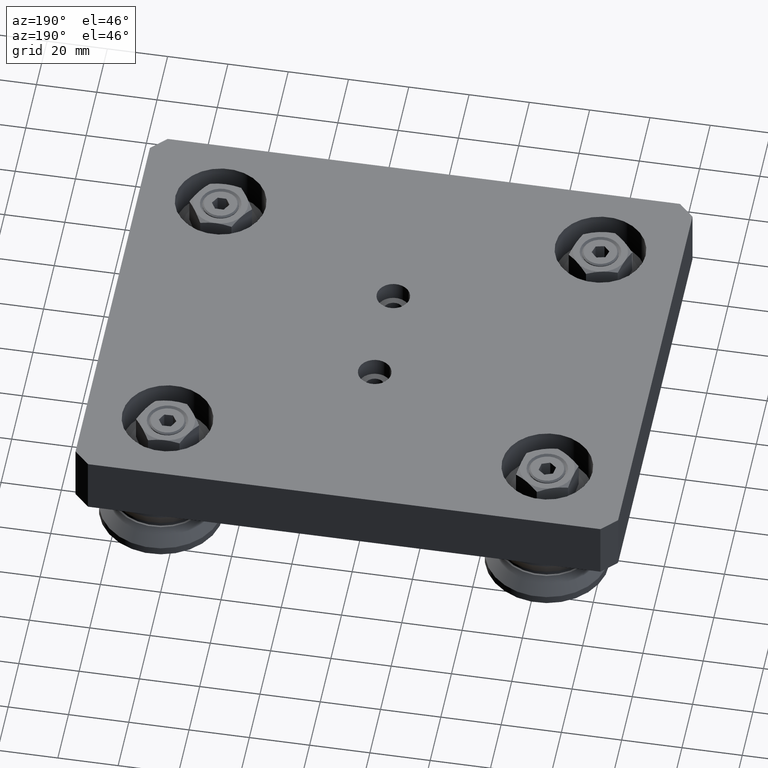
[diagram: clean part render]
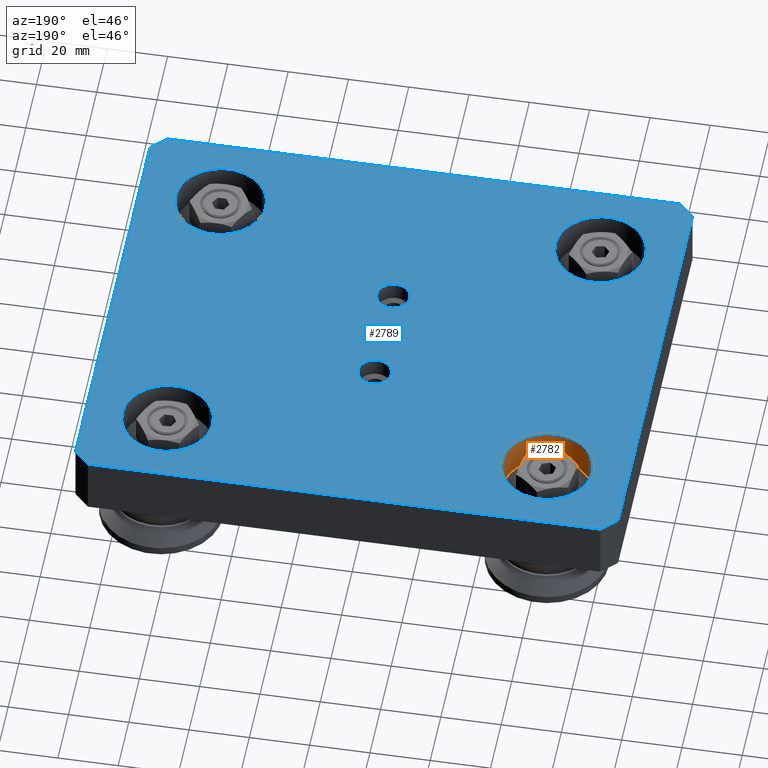
[diagram: same view with the hole feature highlighted: cylindrical wall and planar end face, labeled with their STEP entity ids]
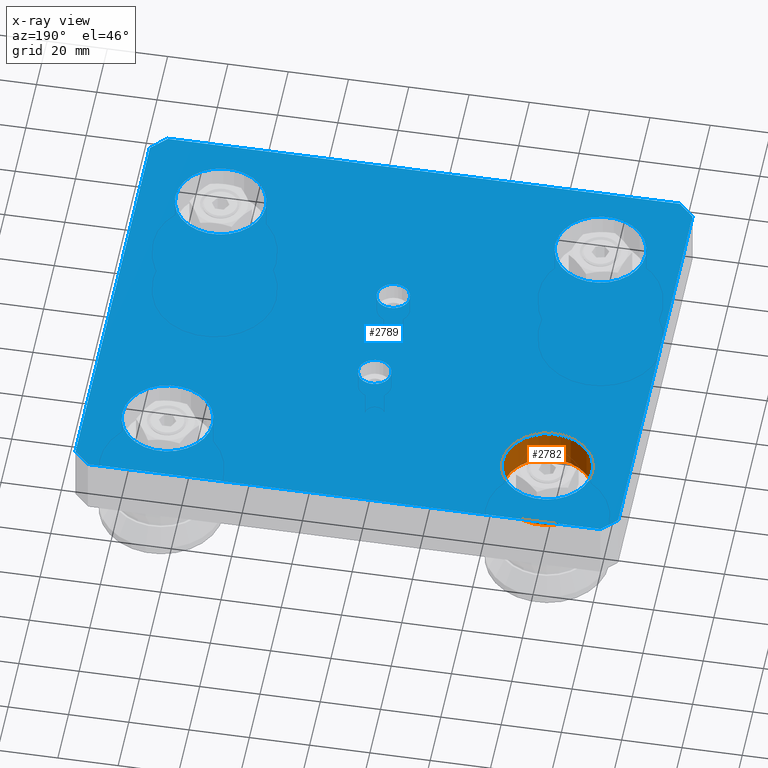
[diagram: x-ray of the same camera — body ghosted, the hole faces saturated]
A machine part, auxiliary view. The highlighted faces form one hole feature of diameter 30 mm: the cylindrical wall (entity #2782, orange) and its adjacent planar end face (entity #2789, blue) — they share a circular edge in the B-rep.
The next image is the same camera in x-ray (body ghosted, the hole faces saturated) — the bore reads through the body.
Wall:
#190=CYLINDRICAL_SURFACE('',#3196,15.);
#289=CIRCLE('',#3194,15.);
#291=CIRCLE('',#3197,15.);
#443=FACE_OUTER_BOUND('',#635,.T.);
#635=EDGE_LOOP('',(#1964,#1965,#1966,#1967));
#855=LINE('',#4552,#1068);
#1068=VECTOR('',#3630,15.);
#1285=VERTEX_POINT('',#4545);
#1287=VERTEX_POINT('',#4550);
#1543=EDGE_CURVE('',#1285,#1285,#289,.T.);
#1545=EDGE_CURVE('',#1287,#1287,#291,.T.);
#1546=EDGE_CURVE('',#1287,#1285,#855,.T.);
#1964=ORIENTED_EDGE('',*,*,#1545,.F.);
#1965=ORIENTED_EDGE('',*,*,#1546,.T.);
#1966=ORIENTED_EDGE('',*,*,#1543,.F.);
#1967=ORIENTED_EDGE('',*,*,#1546,.F.);
#2782=ADVANCED_FACE('',(#443),#190,.F.);
#3194=AXIS2_PLACEMENT_3D('',#4546,#3622,#3623);
#3196=AXIS2_PLACEMENT_3D('',#4549,#3626,#3627);
#3197=AXIS2_PLACEMENT_3D('',#4551,#3628,#3629);
#3622=DIRECTION('center_axis',(0.,0.,1.));
#3623=DIRECTION('ref_axis',(1.,0.,0.));
#3626=DIRECTION('center_axis',(0.,0.,1.));
#3627=DIRECTION('ref_axis',(1.,0.,0.));
#3628=DIRECTION('center_axis',(0.,0.,-1.));
#3629=DIRECTION('ref_axis',(1.,0.,0.));
#3630=DIRECTION('',(0.,0.,-1.));
#4545=CARTESIAN_POINT('',(-78.,50.,8.));
#4546=CARTESIAN_POINT('Origin',(-63.,50.,8.));
#4549=CARTESIAN_POINT('Origin',(-63.,50.,14.));
#4550=CARTESIAN_POINT('',(-78.,50.,20.));
#4551=CARTESIAN_POINT('Origin',(-63.,50.,20.));
#4552=CARTESIAN_POINT('',(-78.,50.,14.));
End face:
#243=FACE_BOUND('',#644,.T.);
#244=FACE_BOUND('',#645,.T.);
#245=FACE_BOUND('',#646,.T.);
#246=FACE_BOUND('',#647,.T.);
#247=FACE_BOUND('',#648,.T.);
#248=FACE_BOUND('',#649,.T.);
#279=CIRCLE('',#3173,5.5);
#282=CIRCLE('',#3179,5.5);
#285=CIRCLE('',#3185,15.);
#288=CIRCLE('',#3191,15.);
#291=CIRCLE('',#3197,15.);
#294=CIRCLE('',#3203,15.);
#450=FACE_OUTER_BOUND('',#643,.T.);
#643=EDGE_LOOP('',(#1990,#1991,#1992,#1993,#1994,#1995,#1996,#1997));
#644=EDGE_LOOP('',(#1998));
#645=EDGE_LOOP('',(#1999));
#646=EDGE_LOOP('',(#2000));
#647=EDGE_LOOP('',(#2001));
#648=EDGE_LOOP('',(#2002));
#649=EDGE_LOOP('',(#2003));
#825=LINE('',#4446,#1038);
#831=LINE('',#4457,#1044);
#838=LINE('',#4485,#1051);
#841=LINE('',#4490,#1054);
#843=LINE('',#4494,#1056);
#845=LINE('',#4498,#1058);
#859=LINE('',#4567,#1072);
#860=LINE('',#4569,#1073);
#1038=VECTOR('',#3518,10.);
#1044=VECTOR('',#3526,10.);
#1051=VECTOR('',#3549,10.);
#1054=VECTOR('',#3554,10.);
#1056=VECTOR('',#3558,10.);
#1058=VECTOR('',#3562,10.);
#1072=VECTOR('',#3650,10.);
#1073=VECTOR('',#3653,10.);
#1251=VERTEX_POINT('',#4444);
#1252=VERTEX_POINT('',#4445);
#1256=VERTEX_POINT('',#4455);
#1268=VERTEX_POINT('',#4483);
#1269=VERTEX_POINT('',#4484);
#1270=VERTEX_POINT('',#4489);
#1271=VERTEX_POINT('',#4493);
#1272=VERTEX_POINT('',#4497);
#1275=VERTEX_POINT('',#4506);
#1278=VERTEX_POINT('',#4517);
#1281=VERTEX_POINT('',#4528);
#1284=VERTEX_POINT('',#4539);
#1287=VERTEX_POINT('',#4550);
#1290=VERTEX_POINT('',#4561);
#1495=EDGE_CURVE('',#1251,#1252,#825,.T.);
#1501=EDGE_CURVE('',#1256,#1251,#831,.T.);
#1514=EDGE_CURVE('',#1268,#1269,#838,.T.);
#1517=EDGE_CURVE('',#1269,#1270,#841,.T.);
#1519=EDGE_CURVE('',#1270,#1271,#843,.T.);
#1521=EDGE_CURVE('',#1272,#1256,#845,.T.);
#1525=EDGE_CURVE('',#1275,#1275,#279,.T.);
#1530=EDGE_CURVE('',#1278,#1278,#282,.T.);
#1535=EDGE_CURVE('',#1281,#1281,#285,.T.);
#1540=EDGE_CURVE('',#1284,#1284,#288,.T.);
#1545=EDGE_CURVE('',#1287,#1287,#291,.T.);
#1550=EDGE_CURVE('',#1290,#1290,#294,.T.);
#1553=EDGE_CURVE('',#1271,#1272,#859,.T.);
#1554=EDGE_CURVE('',#1252,#1268,#860,.T.);
#1990=ORIENTED_EDGE('',*,*,#1495,.F.);
#1991=ORIENTED_EDGE('',*,*,#1501,.F.);
#1992=ORIENTED_EDGE('',*,*,#1521,.F.);
#1993=ORIENTED_EDGE('',*,*,#1553,.F.);
#1994=ORIENTED_EDGE('',*,*,#1519,.F.);
#1995=ORIENTED_EDGE('',*,*,#1517,.F.);
#1996=ORIENTED_EDGE('',*,*,#1514,.F.);
#1997=ORIENTED_EDGE('',*,*,#1554,.F.);
#1998=ORIENTED_EDGE('',*,*,#1525,.T.);
#1999=ORIENTED_EDGE('',*,*,#1530,.T.);
#2000=ORIENTED_EDGE('',*,*,#1535,.T.);
#2001=ORIENTED_EDGE('',*,*,#1540,.T.);
#2002=ORIENTED_EDGE('',*,*,#1545,.T.);
#2003=ORIENTED_EDGE('',*,*,#1550,.T.);
#2677=PLANE('',#3207);
#2789=ADVANCED_FACE('',(#450,#243,#244,#245,#246,#247,#248),#2677,.T.);
#3173=AXIS2_PLACEMENT_3D('',#4507,#3572,#3573);
#3179=AXIS2_PLACEMENT_3D('',#4518,#3586,#3587);
#3185=AXIS2_PLACEMENT_3D('',#4529,#3600,#3601);
#3191=AXIS2_PLACEMENT_3D('',#4540,#3614,#3615);
#3197=AXIS2_PLACEMENT_3D('',#4551,#3628,#3629);
#3203=AXIS2_PLACEMENT_3D('',#4562,#3642,#3643);
#3207=AXIS2_PLACEMENT_3D('',#4570,#3654,#3655);
#3518=DIRECTION('',(0.707106781186548,0.707106781186548,0.));
#3526=DIRECTION('',(0.,1.,0.));
#3549=DIRECTION('',(0.707106781186548,-0.707106781186548,0.));
#3554=DIRECTION('',(0.,-1.,0.));
#3558=DIRECTION('',(-0.707106781186548,-0.707106781186548,0.));
#3562=DIRECTION('',(-0.707106781186548,0.707106781186548,0.));
#3572=DIRECTION('center_axis',(0.,0.,-1.));
#3573=DIRECTION('ref_axis',(1.,0.,0.));
#3586=DIRECTION('center_axis',(0.,0.,-1.));
#3587=DIRECTION('ref_axis',(1.,0.,0.));
#3600=DIRECTION('center_axis',(0.,0.,-1.));
#3601=DIRECTION('ref_axis',(1.,0.,0.));
#3614=DIRECTION('center_axis',(0.,0.,-1.));
#3615=DIRECTION('ref_axis',(1.,0.,0.));
#3628=DIRECTION('center_axis',(0.,0.,-1.));
#3629=DIRECTION('ref_axis',(1.,0.,0.));
#3642=DIRECTION('center_axis',(0.,0.,-1.));
#3643=DIRECTION('ref_axis',(1.,0.,0.));
#3650=DIRECTION('',(-1.,0.,0.));
#3653=DIRECTION('',(1.,0.,0.));
#3654=DIRECTION('center_axis',(0.,0.,1.));
#3655=DIRECTION('ref_axis',(1.,0.,0.));
#4444=CARTESIAN_POINT('',(-90.,70.,20.));
#4445=CARTESIAN_POINT('',(-85.,75.,20.));
#4446=CARTESIAN_POINT('',(-83.75,76.25,20.));
#4455=CARTESIAN_POINT('',(-90.,-70.,20.));
#4457=CARTESIAN_POINT('',(-90.,-75.,20.));
#4483=CARTESIAN_POINT('',(85.,75.,20.));
#4484=CARTESIAN_POINT('',(90.,70.,20.));
#4485=CARTESIAN_POINT('',(83.75,76.25,20.));
#4489=CARTESIAN_POINT('',(90.,-70.,20.));
#4490=CARTESIAN_POINT('',(90.,75.,20.));
#4493=CARTESIAN_POINT('',(85.,-75.,20.));
#4494=CARTESIAN_POINT('',(83.75,-76.25,20.));
#4497=CARTESIAN_POINT('',(-85.,-75.,20.));
#4498=CARTESIAN_POINT('',(-83.75,-76.25,20.));
#4506=CARTESIAN_POINT('',(-5.5,17.5,20.));
#4507=CARTESIAN_POINT('Origin',(0.,17.5,20.));
#4517=CARTESIAN_POINT('',(-5.5,-17.5,20.));
#4518=CARTESIAN_POINT('Origin',(0.,-17.5,20.));
#4528=CARTESIAN_POINT('',(48.,-50.,20.));
#4529=CARTESIAN_POINT('Origin',(63.,-50.,20.));
#4539=CARTESIAN_POINT('',(48.,50.,20.));
#4540=CARTESIAN_POINT('Origin',(63.,50.,20.));
#4550=CARTESIAN_POINT('',(-78.,50.,20.));
#4551=CARTESIAN_POINT('Origin',(-63.,50.,20.));
#4561=CARTESIAN_POINT('',(-78.,-50.,20.));
#4562=CARTESIAN_POINT('Origin',(-63.,-50.,20.));
#4567=CARTESIAN_POINT('',(90.,-75.,20.));
#4569=CARTESIAN_POINT('',(-90.,75.,20.));
#4570=CARTESIAN_POINT('Origin',(0.,0.,20.));